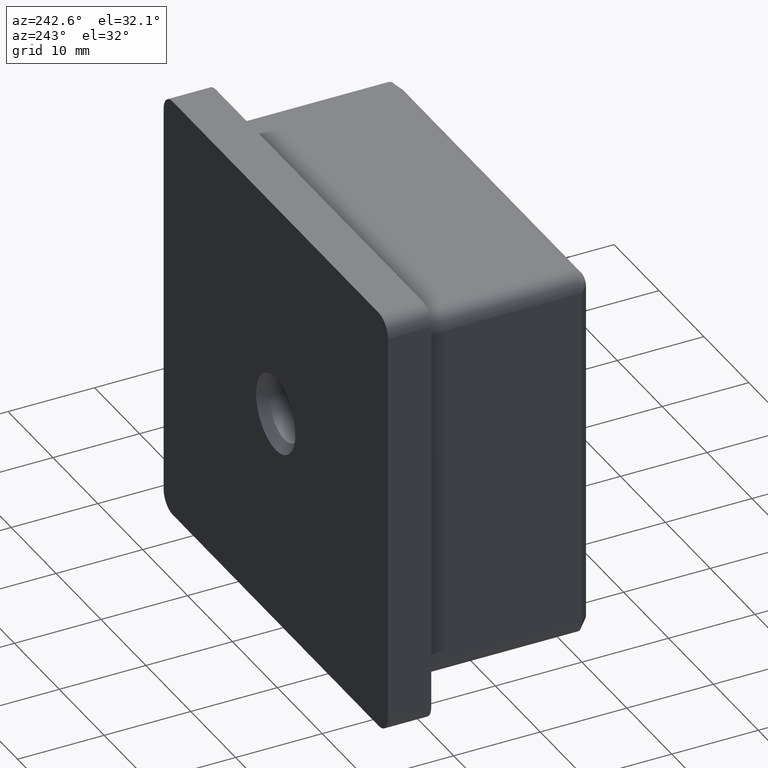
[diagram: clean part render]
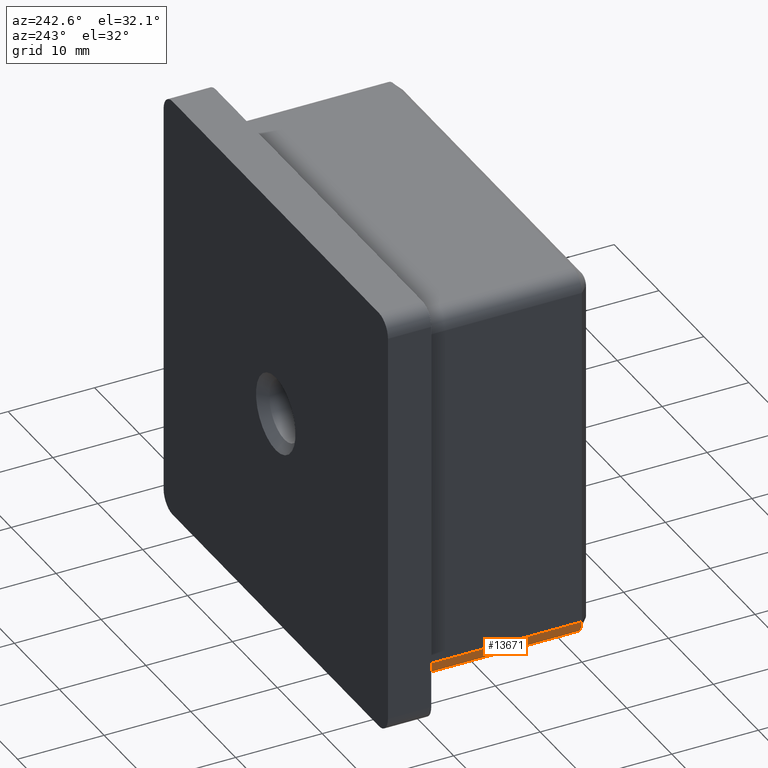
[diagram: same view with one face highlighted and labeled with its STEP entity id]
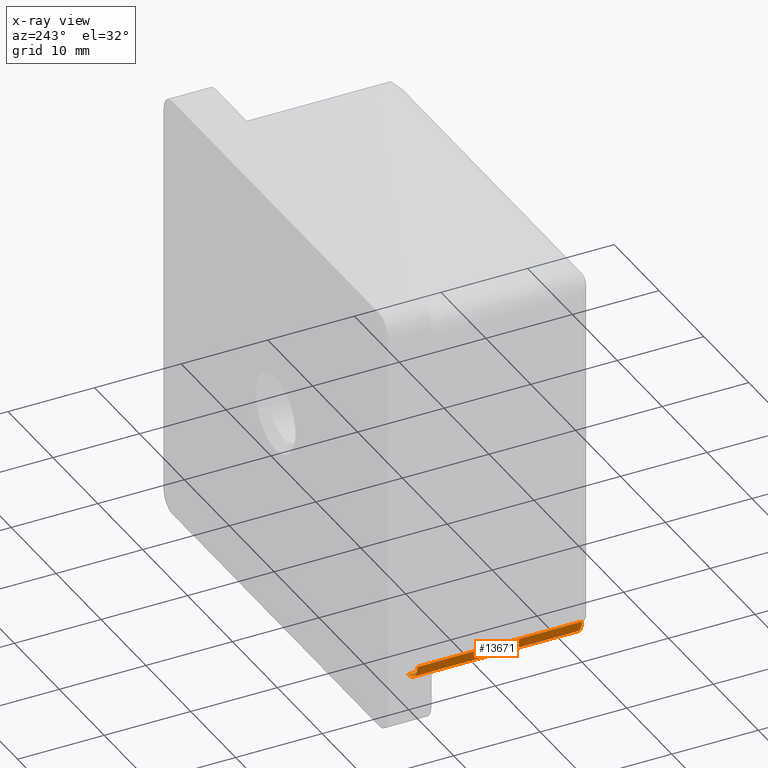
[diagram: x-ray of the same camera — body ghosted, the highlighted face saturated]
A machine part, auxiliary view. The second image highlights one B-rep face of the part: STEP entity #13671.
The next image is the same camera in x-ray: the body ghosted, the highlighted face saturated — about 0% of this face is hidden behind the body in this view.
In plain terms, the highlighted cylindrical surface (edge-blend (fillet) strip) has radius 2 mm, axis along (0, 1, -0).
Its self-contained STEP definition (entity closure, byte-faithful):
#83 = CIRCLE ( 'NONE', #13969, 2.000000000000001800 ) ;
#217 = VECTOR ( 'NONE', #19060, 1000.000000000000000 ) ;
#1492 = ORIENTED_EDGE ( 'NONE', *, *, #17175, .F. ) ;
#2342 = DIRECTION ( 'NONE',  ( 0.0000000000000000000, 0.0000000000000000000, 1.000000000000000000 ) ) ;
#2386 = EDGE_CURVE ( 'NONE', #7029, #14550, #83, .T. ) ;
#3173 = EDGE_CURVE ( 'NONE', #7029, #6943, #17946, .T. ) ;
#3304 = CYLINDRICAL_SURFACE ( 'NONE', #16190, 2.000000000000001800 ) ;
#3818 = DIRECTION ( 'NONE',  ( 0.0000000000000000000, 0.0000000000000000000, -1.000000000000000000 ) ) ;
#4274 = DIRECTION ( 'NONE',  ( 0.0000000000000000000, 0.0000000000000000000, 1.000000000000000000 ) ) ;
#5519 = DIRECTION ( 'NONE',  ( 0.0000000000000000000, 1.000000000000000000, 0.0000000000000000000 ) ) ;
#6694 = CIRCLE ( 'NONE', #10893, 2.000000000000001800 ) ;
#6864 = CARTESIAN_POINT ( 'NONE',  ( -19.89999999999998800, -20.00000000000000000, -21.89999999999998800 ) ) ;
#6943 = VERTEX_POINT ( 'NONE', #15127 ) ;
#7006 = CARTESIAN_POINT ( 'NONE',  ( -19.89999999999998800, -20.00000000000000000, -19.89999999999998800 ) ) ;
#7029 = VERTEX_POINT ( 'NONE', #15390 ) ;
#7087 = CARTESIAN_POINT ( 'NONE',  ( -19.89999999999998800, 0.0000000000000000000, -19.89999999999998800 ) ) ;
#7120 = CARTESIAN_POINT ( 'NONE',  ( -21.89999999999998800, 0.0000000000000000000, -19.89999999999998800 ) ) ;
#7971 = VECTOR ( 'NONE', #8237, 1000.000000000000000 ) ;
#8237 = DIRECTION ( 'NONE',  ( 0.0000000000000000000, 1.000000000000000000, -0.0000000000000000000 ) ) ;
#8435 = DIRECTION ( 'NONE',  ( 0.0000000000000000000, 1.000000000000000000, 0.0000000000000000000 ) ) ;
#8844 = VERTEX_POINT ( 'NONE', #7120 ) ;
#10234 = CARTESIAN_POINT ( 'NONE',  ( -21.89999999999998800, -20.00000000000000000, -19.89999999999998800 ) ) ;
#10893 = AXIS2_PLACEMENT_3D ( 'NONE', #7087, #5519, #4274 ) ;
#11174 = FACE_OUTER_BOUND ( 'NONE', #14032, .T. ) ;
#11819 = LINE ( 'NONE', #10234, #217 ) ;
#12681 = CARTESIAN_POINT ( 'NONE',  ( -19.89999999999998800, -18.99999999999999300, -19.89999999999998800 ) ) ;
#13671 = ADVANCED_FACE ( 'NONE', ( #11174 ), #3304, .T. ) ;
#13856 = ORIENTED_EDGE ( 'NONE', *, *, #2386, .T. ) ;
#13969 = AXIS2_PLACEMENT_3D ( 'NONE', #12681, #8435, #3818 ) ;
#14032 = EDGE_LOOP ( 'NONE', ( #16453, #13856, #16371, #1492 ) ) ;
#14328 = CARTESIAN_POINT ( 'NONE',  ( -21.89999999999998800, -18.99999999999999300, -19.89999999999998800 ) ) ;
#14550 = VERTEX_POINT ( 'NONE', #14328 ) ;
#15045 = EDGE_CURVE ( 'NONE', #8844, #14550, #11819, .T. ) ;
#15127 = CARTESIAN_POINT ( 'NONE',  ( -19.89999999999998800, 0.0000000000000000000, -21.89999999999998800 ) ) ;
#15390 = CARTESIAN_POINT ( 'NONE',  ( -19.89999999999998800, -18.99999999999999300, -21.89999999999998800 ) ) ;
#15819 = DIRECTION ( 'NONE',  ( 0.0000000000000000000, 1.000000000000000000, -0.0000000000000000000 ) ) ;
#16190 = AXIS2_PLACEMENT_3D ( 'NONE', #7006, #15819, #2342 ) ;
#16371 = ORIENTED_EDGE ( 'NONE', *, *, #15045, .F. ) ;
#16453 = ORIENTED_EDGE ( 'NONE', *, *, #3173, .F. ) ;
#17175 = EDGE_CURVE ( 'NONE', #6943, #8844, #6694, .T. ) ;
#17946 = LINE ( 'NONE', #6864, #7971 ) ;
#19060 = DIRECTION ( 'NONE',  ( -0.0000000000000000000, -1.000000000000000000, -0.0000000000000000000 ) ) ;